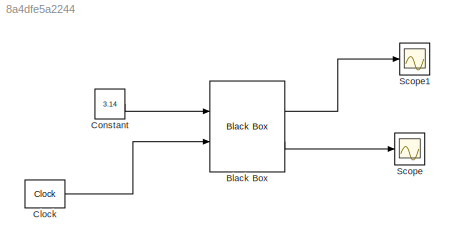
MODEL slx_8a4dfe5a2244
KIND model
BLOCK [Reference] Black Box  REF=xbsIndex_r4/Black Box
  Ports = [2, 2]
  SourceBlock = xbsIndex_r4/Black Box
  SourceType = Xilinx Black Box Block
  block_type = blackbox2
  has_advanced_control = 0
  infoedit = Incorporates black box HDL and simulation model into a System Generator design.<br><br>You must supply a Black Box with certain information about the HDL component you would like to bring into System Generator. This information is provided through a Matlab function.<br><br>When "Simulation mode" is set to "Inactive", you will typically want to provide a separate simulation model by using a Simulat...<+126ch>
  init_code = sin_cos_module_config
  sg_icon_stat = 75,91,2,2,white,blue,0,d3e7a0cd,right,,[ ],[ ]
  sg_mask_display = fprintf('','COMMENT: begin icon graphics');\npatch([0 75 75 0 0 ],[0 0 91 91 0 ],[0.77 0.82 0.91 ]);\nplot([0 75 75 0 0 ],[0 0 91 91 0 ]);\npatch([14.75 29.2 39.2 49.2 59.2 39.2 24.75 14.75 ],[56.1 56.1 66.1 56.1 66.1 66.1 66.1 56.1 ],[1 1 1 ]);\npatch([24.75 39.2 29.2 14.75 24.75 ],[46.1 46.1 56.1 56.1 46.1 ],[0.931 0.946 0.973 ]);\npatch([14.75 29.2 39.2 24.75 14.75 ],[36.1 36.1 46.1 46.1 36.1 ],[1 1...<+421ch>
  sggui_pos = -1,-1,-1,-1
  sim_method = ISE Simulator
  verbose = off
  xl_area = [0,0,0,0,0,0,0]
  xl_use_area = off
BLOCK [Reference] Clock  REF=simulink_extras/Flip Flops/Clock
  Ports = [0, 1]
  SourceBlock = simulink_extras/Flip Flops/Clock
  SourceType = Digital clock
  period = 2
BLOCK [Constant] Constant
  SampleTime = 1
  Value = 3.14
BLOCK [Scope] Scope
  Floating = off
  NumInputPorts = 1
  Ports = [1]
  ShowLegends = off
BLOCK [Scope] Scope1
  Floating = off
  NumInputPorts = 1
  Ports = [1]
  SaveName = ScopeData1
  ShowLegends = off
LINE Black Box:1 -> Scope1:1
LINE Black Box:2 -> Scope:1
LINE Clock:1 -> Black Box:2
LINE Constant:1 -> Black Box:1
